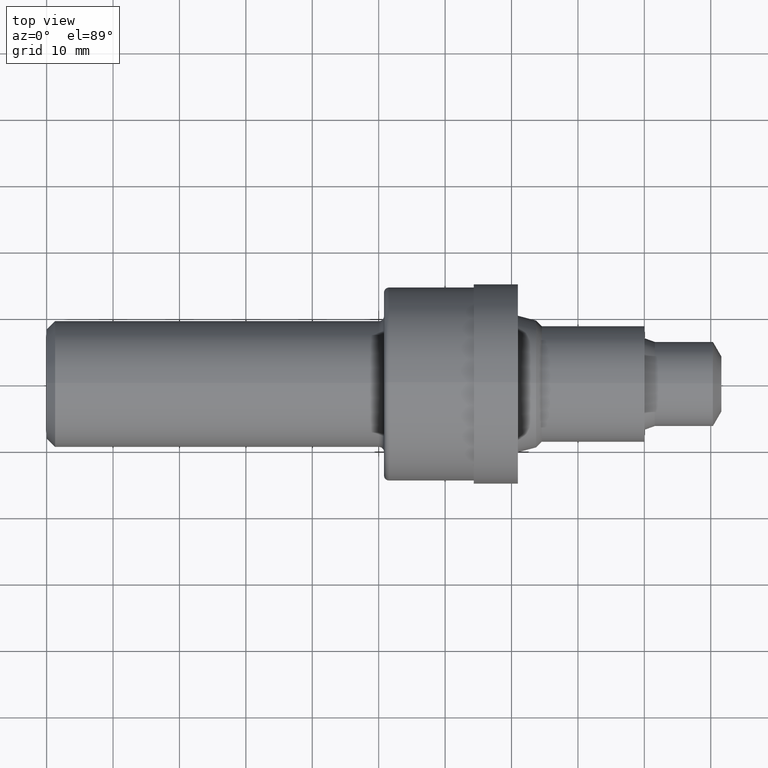
[diagram: clean part render]
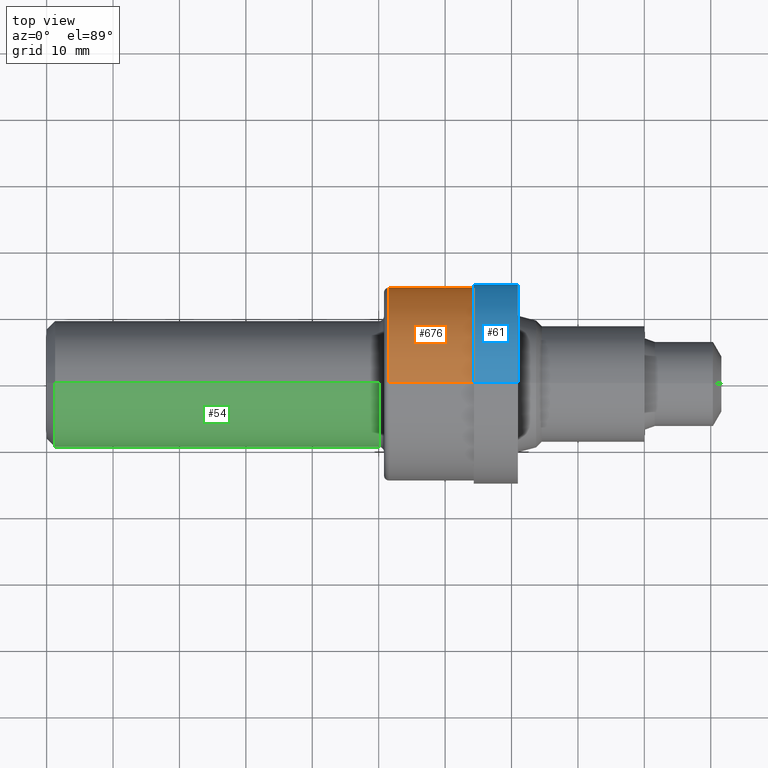
[diagram: same view with three faces highlighted in distinct colors, each labeled with its STEP entity id]
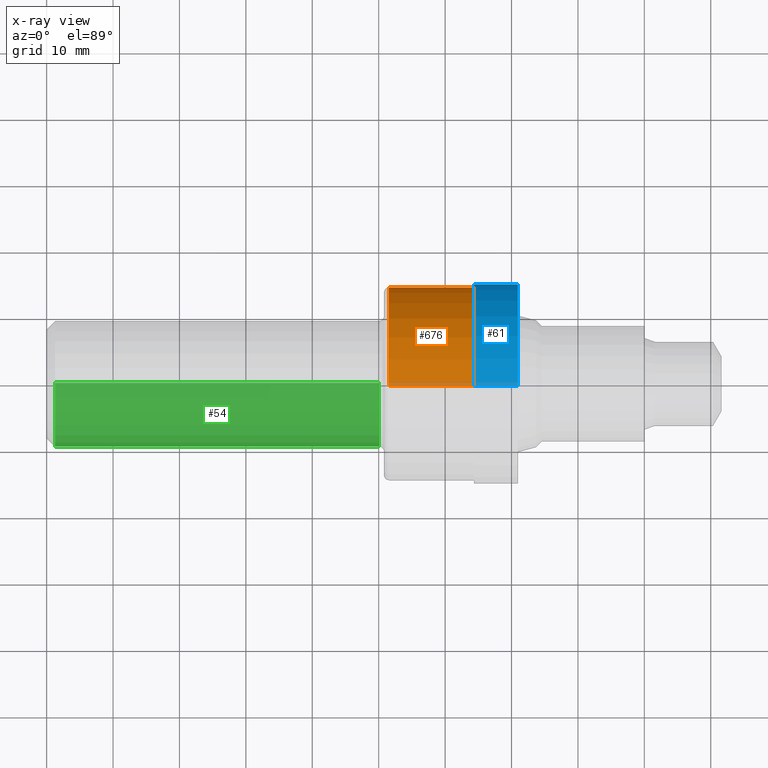
[diagram: x-ray of the same camera — body ghosted, the three highlighted faces saturated]
A machine part, top view with three faces highlighted in distinct colors.
The next image is the same camera in x-ray (body ghosted, the three faces saturated) — at least one of them is partly hidden behind the body in this view.
Their STEP definitions:

[orange] entity #676 — the highlighted cylindrical surface (partial cylindrical patch) has radius 14.605 mm, axis along (-1, -0, -0).
#30 = CARTESIAN_POINT ( 'NONE',  ( 0.0000000000000000000, 0.0000000000000000000, 0.5749999999999998446 ) ) ;
#38 = AXIS2_PLACEMENT_3D ( 'NONE', #114, #548, #295 ) ;
#41 = VECTOR ( 'NONE', #586, 39.37007874015748143 ) ;
#49 = VERTEX_POINT ( 'NONE', #172 ) ;
#56 = AXIS2_PLACEMENT_3D ( 'NONE', #137, #697, #766 ) ;
#114 = CARTESIAN_POINT ( 'NONE',  ( 2.532000000000000028, 0.0000000000000000000, 0.0000000000000000000 ) ) ;
#119 = LINE ( 'NONE', #389, #575 ) ;
#137 = CARTESIAN_POINT ( 'NONE',  ( 0.0000000000000000000, 0.0000000000000000000, 0.0000000000000000000 ) ) ;
#146 = CYLINDRICAL_SURFACE ( 'NONE', #56, 0.5749999999999998446 ) ;
#156 = EDGE_CURVE ( 'NONE', #199, #49, #119, .T. ) ;
#163 = DIRECTION ( 'NONE',  ( 0.0000000000000000000, 0.0000000000000000000, 1.000000000000000000 ) ) ;
#172 = CARTESIAN_POINT ( 'NONE',  ( 2.029999999999999805, 7.041719095097280140E-17, -0.5749999999999998446 ) ) ;
#199 = VERTEX_POINT ( 'NONE', #696 ) ;
#224 = EDGE_CURVE ( 'NONE', #576, #49, #559, .T. ) ;
#241 = DIRECTION ( 'NONE',  ( -1.000000000000000000, -0.0000000000000000000, -0.0000000000000000000 ) ) ;
#282 = EDGE_CURVE ( 'NONE', #808, #576, #524, .T. ) ;
#295 = DIRECTION ( 'NONE',  ( 0.0000000000000000000, 0.0000000000000000000, 1.000000000000000000 ) ) ;
#313 = FACE_OUTER_BOUND ( 'NONE', #531, .T. ) ;
#329 = ORIENTED_EDGE ( 'NONE', *, *, #156, .T. ) ;
#389 = CARTESIAN_POINT ( 'NONE',  ( 0.0000000000000000000, 7.041719095097280140E-17, -0.5749999999999998446 ) ) ;
#405 = ORIENTED_EDGE ( 'NONE', *, *, #224, .F. ) ;
#408 = EDGE_CURVE ( 'NONE', #808, #199, #777, .T. ) ;
#490 = AXIS2_PLACEMENT_3D ( 'NONE', #532, #589, #163 ) ;
#494 = ORIENTED_EDGE ( 'NONE', *, *, #282, .F. ) ;
#524 = LINE ( 'NONE', #30, #41 ) ;
#531 = EDGE_LOOP ( 'NONE', ( #734, #329, #405, #494 ) ) ;
#532 = CARTESIAN_POINT ( 'NONE',  ( 2.029999999999999805, 0.0000000000000000000, 0.0000000000000000000 ) ) ;
#548 = DIRECTION ( 'NONE',  ( -1.000000000000000000, -0.0000000000000000000, -0.0000000000000000000 ) ) ;
#559 = CIRCLE ( 'NONE', #490, 0.5749999999999998446 ) ;
#575 = VECTOR ( 'NONE', #241, 39.37007874015748143 ) ;
#576 = VERTEX_POINT ( 'NONE', #707 ) ;
#586 = DIRECTION ( 'NONE',  ( -1.000000000000000000, -0.0000000000000000000, -0.0000000000000000000 ) ) ;
#589 = DIRECTION ( 'NONE',  ( -1.000000000000000000, -0.0000000000000000000, -0.0000000000000000000 ) ) ;
#645 = CARTESIAN_POINT ( 'NONE',  ( 2.532000000000000028, 0.0000000000000000000, 0.5749999999999999556 ) ) ;
#676 = ADVANCED_FACE ( 'NONE', ( #313 ), #146, .T. ) ;
#696 = CARTESIAN_POINT ( 'NONE',  ( 2.532000000000000028, 7.041719095097281373E-17, -0.5750000000000000666 ) ) ;
#697 = DIRECTION ( 'NONE',  ( -1.000000000000000000, -0.0000000000000000000, -0.0000000000000000000 ) ) ;
#707 = CARTESIAN_POINT ( 'NONE',  ( 2.029999999999999805, 0.0000000000000000000, 0.5749999999999998446 ) ) ;
#734 = ORIENTED_EDGE ( 'NONE', *, *, #408, .T. ) ;
#766 = DIRECTION ( 'NONE',  ( 0.0000000000000000000, 0.0000000000000000000, 1.000000000000000000 ) ) ;
#777 = CIRCLE ( 'NONE', #38, 0.5749999999999999556 ) ;
#808 = VERTEX_POINT ( 'NONE', #645 ) ;

[blue] entity #61 — the highlighted cylindrical surface (partial cylindrical patch) has radius 15.0876 mm, axis along (-1, -0, -0).
#22 = EDGE_CURVE ( 'NONE', #255, #517, #652, .T. ) ;
#32 = CARTESIAN_POINT ( 'NONE',  ( 0.0000000000000000000, 7.274401986935277967E-17, -0.5939999999999999725 ) ) ;
#61 = ADVANCED_FACE ( 'NONE', ( #63 ), #703, .T. ) ;
#63 = FACE_OUTER_BOUND ( 'NONE', #92, .T. ) ;
#85 = EDGE_CURVE ( 'NONE', #715, #672, #473, .T. ) ;
#86 = CARTESIAN_POINT ( 'NONE',  ( 2.532000000000000028, 0.0000000000000000000, 0.0000000000000000000 ) ) ;
#92 = EDGE_LOOP ( 'NONE', ( #583, #613, #794, #221 ) ) ;
#100 = CARTESIAN_POINT ( 'NONE',  ( 0.0000000000000000000, 0.0000000000000000000, 0.0000000000000000000 ) ) ;
#148 = AXIS2_PLACEMENT_3D ( 'NONE', #86, #215, #277 ) ;
#155 = DIRECTION ( 'NONE',  ( -1.000000000000000000, -0.0000000000000000000, -0.0000000000000000000 ) ) ;
#215 = DIRECTION ( 'NONE',  ( -1.000000000000000000, -0.0000000000000000000, -0.0000000000000000000 ) ) ;
#221 = ORIENTED_EDGE ( 'NONE', *, *, #22, .F. ) ;
#255 = VERTEX_POINT ( 'NONE', #646 ) ;
#277 = DIRECTION ( 'NONE',  ( 0.0000000000000000000, 0.0000000000000000000, 1.000000000000000000 ) ) ;
#298 = CARTESIAN_POINT ( 'NONE',  ( 2.794000000000000483, 0.0000000000000000000, 0.0000000000000000000 ) ) ;
#305 = VECTOR ( 'NONE', #155, 39.37007874015748143 ) ;
#314 = CIRCLE ( 'NONE', #770, 0.5939999999999999725 ) ;
#317 = AXIS2_PLACEMENT_3D ( 'NONE', #100, #789, #415 ) ;
#321 = EDGE_CURVE ( 'NONE', #255, #715, #314, .T. ) ;
#352 = DIRECTION ( 'NONE',  ( 0.0000000000000000000, 0.0000000000000000000, 1.000000000000000000 ) ) ;
#371 = CIRCLE ( 'NONE', #148, 0.5939999999999999725 ) ;
#415 = DIRECTION ( 'NONE',  ( 0.0000000000000000000, 0.0000000000000000000, 1.000000000000000000 ) ) ;
#456 = CARTESIAN_POINT ( 'NONE',  ( 2.532000000000000028, 7.274401986935277967E-17, -0.5939999999999999725 ) ) ;
#473 = LINE ( 'NONE', #32, #305 ) ;
#498 = VECTOR ( 'NONE', #533, 39.37007874015748143 ) ;
#517 = VERTEX_POINT ( 'NONE', #813 ) ;
#533 = DIRECTION ( 'NONE',  ( -1.000000000000000000, -0.0000000000000000000, -0.0000000000000000000 ) ) ;
#583 = ORIENTED_EDGE ( 'NONE', *, *, #321, .T. ) ;
#595 = EDGE_CURVE ( 'NONE', #517, #672, #371, .T. ) ;
#613 = ORIENTED_EDGE ( 'NONE', *, *, #85, .T. ) ;
#646 = CARTESIAN_POINT ( 'NONE',  ( 2.794000000000000483, 0.0000000000000000000, 0.5939999999999999725 ) ) ;
#652 = LINE ( 'NONE', #719, #498 ) ;
#672 = VERTEX_POINT ( 'NONE', #456 ) ;
#686 = CARTESIAN_POINT ( 'NONE',  ( 2.794000000000000483, 7.274401986935277967E-17, -0.5939999999999999725 ) ) ;
#703 = CYLINDRICAL_SURFACE ( 'NONE', #317, 0.5939999999999999725 ) ;
#715 = VERTEX_POINT ( 'NONE', #686 ) ;
#719 = CARTESIAN_POINT ( 'NONE',  ( 0.0000000000000000000, 0.0000000000000000000, 0.5939999999999999725 ) ) ;
#731 = DIRECTION ( 'NONE',  ( -1.000000000000000000, -0.0000000000000000000, -0.0000000000000000000 ) ) ;
#770 = AXIS2_PLACEMENT_3D ( 'NONE', #298, #731, #352 ) ;
#789 = DIRECTION ( 'NONE',  ( -1.000000000000000000, -0.0000000000000000000, -0.0000000000000000000 ) ) ;
#794 = ORIENTED_EDGE ( 'NONE', *, *, #595, .F. ) ;
#813 = CARTESIAN_POINT ( 'NONE',  ( 2.532000000000000028, 0.0000000000000000000, 0.5939999999999999725 ) ) ;

[green] entity #54 — the highlighted cylindrical surface (partial cylindrical patch) has radius 9.5212 mm, axis along (-1, -0, -0).
#15 = DIRECTION ( 'NONE',  ( 0.0000000000000000000, 0.0000000000000000000, 1.000000000000000000 ) ) ;
#19 = ORIENTED_EDGE ( 'NONE', *, *, #570, .F. ) ;
#54 = ADVANCED_FACE ( 'NONE', ( #254 ), #231, .T. ) ;
#69 = VERTEX_POINT ( 'NONE', #98 ) ;
#82 = VERTEX_POINT ( 'NONE', #644 ) ;
#98 = CARTESIAN_POINT ( 'NONE',  ( 0.05000000000000000278, 4.590588526603853748E-17, 0.3748500000000000165 ) ) ;
#99 = CARTESIAN_POINT ( 'NONE',  ( 1.969999999999999973, 0.0000000000000000000, 0.0000000000000000000 ) ) ;
#152 = CARTESIAN_POINT ( 'NONE',  ( 0.05000000000000000278, 0.0000000000000000000, 0.0000000000000000000 ) ) ;
#160 = DIRECTION ( 'NONE',  ( 0.0000000000000000000, 0.0000000000000000000, 1.000000000000000000 ) ) ;
#166 = DIRECTION ( 'NONE',  ( 0.0000000000000000000, 0.0000000000000000000, 1.000000000000000000 ) ) ;
#176 = VECTOR ( 'NONE', #797, 39.37007874015748143 ) ;
#214 = DIRECTION ( 'NONE',  ( -1.000000000000000000, -0.0000000000000000000, -0.0000000000000000000 ) ) ;
#223 = CARTESIAN_POINT ( 'NONE',  ( 0.0000000000000000000, 0.0000000000000000000, 0.0000000000000000000 ) ) ;
#231 = CYLINDRICAL_SURFACE ( 'NONE', #527, 0.3748500000000002386 ) ;
#251 = VECTOR ( 'NONE', #214, 39.37007874015748143 ) ;
#254 = FACE_OUTER_BOUND ( 'NONE', #611, .T. ) ;
#258 = CIRCLE ( 'NONE', #597, 0.3748500000000005161 ) ;
#260 = VERTEX_POINT ( 'NONE', #339 ) ;
#286 = CARTESIAN_POINT ( 'NONE',  ( 0.0000000000000000000, 0.0000000000000000000, 0.3748500000000002386 ) ) ;
#332 = LINE ( 'NONE', #286, #176 ) ;
#339 = CARTESIAN_POINT ( 'NONE',  ( 1.969999999999999973, 4.590588526603859294E-17, -0.3748500000000005161 ) ) ;
#348 = VERTEX_POINT ( 'NONE', #654 ) ;
#361 = EDGE_CURVE ( 'NONE', #348, #69, #332, .T. ) ;
#421 = ORIENTED_EDGE ( 'NONE', *, *, #566, .F. ) ;
#453 = ORIENTED_EDGE ( 'NONE', *, *, #361, .T. ) ;
#460 = DIRECTION ( 'NONE',  ( -1.000000000000000000, -0.0000000000000000000, -0.0000000000000000000 ) ) ;
#527 = AXIS2_PLACEMENT_3D ( 'NONE', #223, #538, #166 ) ;
#535 = DIRECTION ( 'NONE',  ( -1.000000000000000000, -0.0000000000000000000, -0.0000000000000000000 ) ) ;
#538 = DIRECTION ( 'NONE',  ( -1.000000000000000000, -0.0000000000000000000, -0.0000000000000000000 ) ) ;
#566 = EDGE_CURVE ( 'NONE', #260, #82, #699, .T. ) ;
#570 = EDGE_CURVE ( 'NONE', #82, #69, #725, .T. ) ;
#597 = AXIS2_PLACEMENT_3D ( 'NONE', #99, #535, #160 ) ;
#611 = EDGE_LOOP ( 'NONE', ( #421, #630, #453, #19 ) ) ;
#630 = ORIENTED_EDGE ( 'NONE', *, *, #790, .T. ) ;
#636 = CARTESIAN_POINT ( 'NONE',  ( 0.0000000000000000000, 4.590588526603856213E-17, -0.3748500000000002386 ) ) ;
#644 = CARTESIAN_POINT ( 'NONE',  ( 0.05000000000000000278, 0.0000000000000000000, -0.3748500000000000165 ) ) ;
#654 = CARTESIAN_POINT ( 'NONE',  ( 1.969999999999999973, 0.0000000000000000000, 0.3748500000000005161 ) ) ;
#699 = LINE ( 'NONE', #636, #251 ) ;
#725 = CIRCLE ( 'NONE', #756, 0.3748500000000000165 ) ;
#756 = AXIS2_PLACEMENT_3D ( 'NONE', #152, #460, #15 ) ;
#790 = EDGE_CURVE ( 'NONE', #260, #348, #258, .T. ) ;
#797 = DIRECTION ( 'NONE',  ( -1.000000000000000000, -0.0000000000000000000, -0.0000000000000000000 ) ) ;